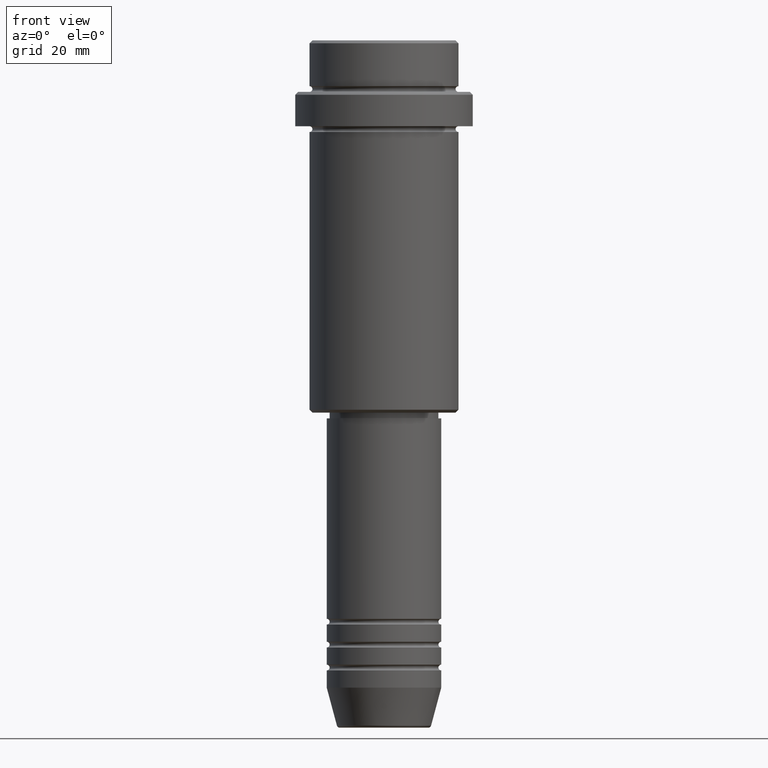
[diagram: clean part render]
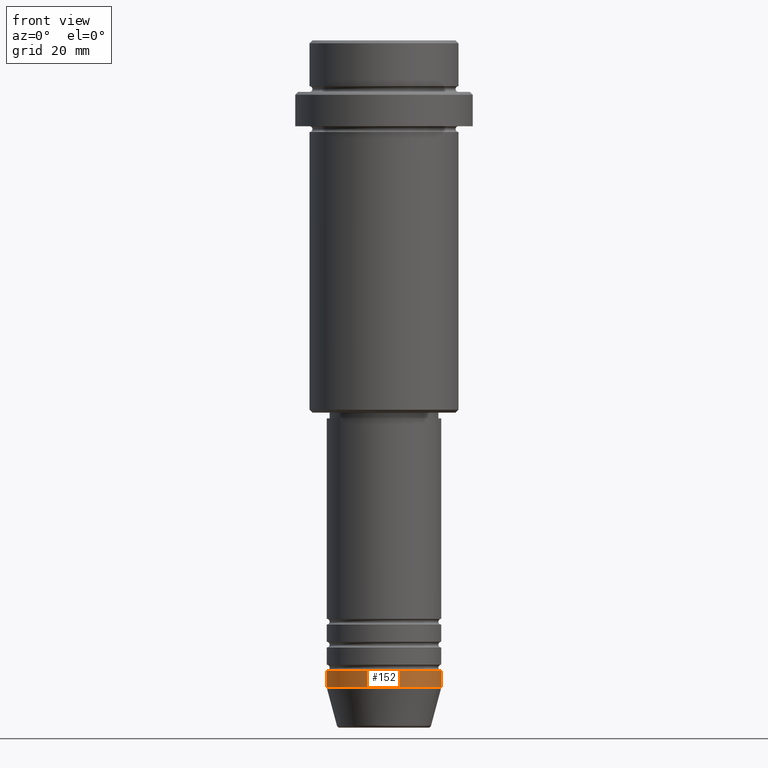
[diagram: same view with one face highlighted and labeled with its STEP entity id]
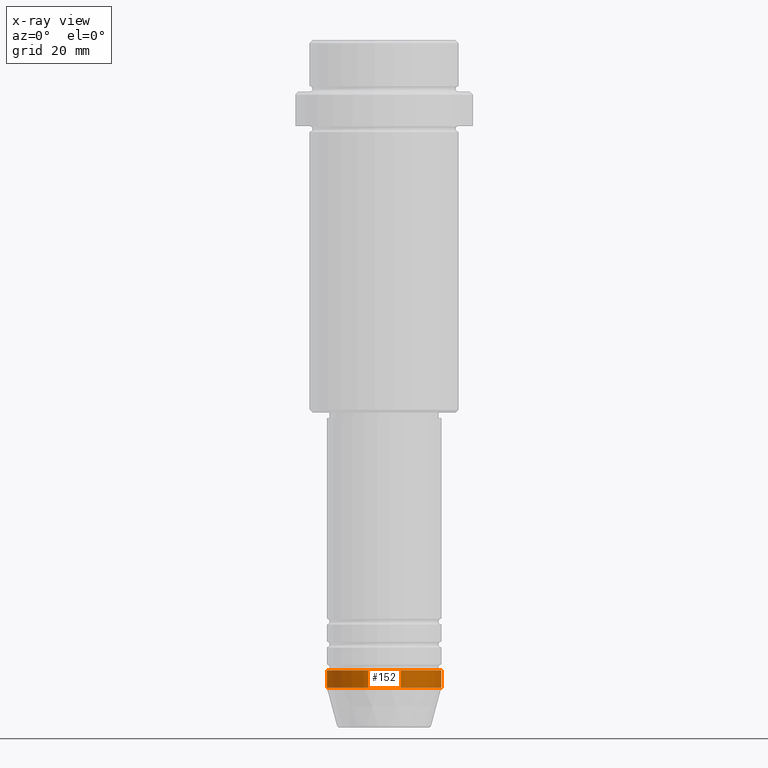
[diagram: x-ray of the same camera — body ghosted, the highlighted face saturated]
A machine part, front view. The second image highlights one B-rep face of the part: STEP entity #152.
The next image is the same camera in x-ray: the body ghosted, the highlighted face saturated — about 0% of this face is hidden behind the body in this view.
In plain terms, the highlighted cylindrical surface (partial cylindrical patch) has radius 10 mm, axis along (-0, -0, 1).
Its self-contained STEP definition (entity closure, byte-faithful):
#6 = EDGE_CURVE ( 'NONE', #214, #1297, #30, .T. ) ;
#13 = ORIENTED_EDGE ( 'NONE', *, *, #308, .F. ) ;
#28 = EDGE_CURVE ( 'NONE', #648, #832, #260, .T. ) ;
#30 = LINE ( 'NONE', #1356, #966 ) ;
#38 = DIRECTION ( 'NONE',  ( 1.000000000000000000, 0.000000000000000000, 0.000000000000000000 ) ) ;
#62 = AXIS2_PLACEMENT_3D ( 'NONE', #675, #380, #1353 ) ;
#74 = EDGE_CURVE ( 'NONE', #648, #214, #290, .T. ) ;
#80 = DIRECTION ( 'NONE',  ( -0.000000000000000000, -0.000000000000000000, 1.000000000000000000 ) ) ;
#152 = ADVANCED_FACE ( 'NONE', ( #525 ), #555, .T. ) ;
#213 = CARTESIAN_POINT ( 'NONE',  ( 0.000000000000000000, 0.000000000000000000, 0.000000000000000000 ) ) ;
#214 = VERTEX_POINT ( 'NONE', #973 ) ;
#249 = CARTESIAN_POINT ( 'NONE',  ( -10.00000000000000000, 1.224646799147353256E-15, -110.0000000000000000 ) ) ;
#260 = LINE ( 'NONE', #1056, #586 ) ;
#290 = CIRCLE ( 'NONE', #1085, 10.00000000000000000 ) ;
#308 = EDGE_CURVE ( 'NONE', #832, #1297, #676, .T. ) ;
#331 = DIRECTION ( 'NONE',  ( 1.000000000000000000, 0.000000000000000000, 0.000000000000000000 ) ) ;
#380 = DIRECTION ( 'NONE',  ( -0.000000000000000000, -0.000000000000000000, 1.000000000000000000 ) ) ;
#404 = DIRECTION ( 'NONE',  ( -0.000000000000000000, -0.000000000000000000, 1.000000000000000000 ) ) ;
#423 = CARTESIAN_POINT ( 'NONE',  ( -10.00000000000000000, 1.224646799147353256E-15, -113.0000000000000000 ) ) ;
#449 = ORIENTED_EDGE ( 'NONE', *, *, #28, .F. ) ;
#454 = CARTESIAN_POINT ( 'NONE',  ( 10.00000000000000000, 0.000000000000000000, -110.0000000000000000 ) ) ;
#525 = FACE_OUTER_BOUND ( 'NONE', #866, .T. ) ;
#530 = DIRECTION ( 'NONE',  ( -0.000000000000000000, -0.000000000000000000, 1.000000000000000000 ) ) ;
#537 = ORIENTED_EDGE ( 'NONE', *, *, #74, .T. ) ;
#555 = CYLINDRICAL_SURFACE ( 'NONE', #652, 10.00000000000000000 ) ;
#586 = VECTOR ( 'NONE', #80, 1000.000000000000000 ) ;
#623 = DIRECTION ( 'NONE',  ( -0.000000000000000000, -0.000000000000000000, 1.000000000000000000 ) ) ;
#648 = VERTEX_POINT ( 'NONE', #423 ) ;
#652 = AXIS2_PLACEMENT_3D ( 'NONE', #213, #530, #331 ) ;
#675 = CARTESIAN_POINT ( 'NONE',  ( 0.000000000000000000, 0.000000000000000000, -110.0000000000000000 ) ) ;
#676 = CIRCLE ( 'NONE', #62, 10.00000000000000000 ) ;
#832 = VERTEX_POINT ( 'NONE', #249 ) ;
#866 = EDGE_LOOP ( 'NONE', ( #449, #537, #941, #13 ) ) ;
#941 = ORIENTED_EDGE ( 'NONE', *, *, #6, .T. ) ;
#966 = VECTOR ( 'NONE', #623, 1000.000000000000000 ) ;
#973 = CARTESIAN_POINT ( 'NONE',  ( 10.00000000000000000, 0.000000000000000000, -113.0000000000000000 ) ) ;
#1056 = CARTESIAN_POINT ( 'NONE',  ( -10.00000000000000000, 1.224646799147353256E-15, 0.000000000000000000 ) ) ;
#1085 = AXIS2_PLACEMENT_3D ( 'NONE', #1242, #404, #38 ) ;
#1242 = CARTESIAN_POINT ( 'NONE',  ( 0.000000000000000000, 0.000000000000000000, -113.0000000000000000 ) ) ;
#1297 = VERTEX_POINT ( 'NONE', #454 ) ;
#1353 = DIRECTION ( 'NONE',  ( 1.000000000000000000, 0.000000000000000000, 0.000000000000000000 ) ) ;
#1356 = CARTESIAN_POINT ( 'NONE',  ( 10.00000000000000000, 0.000000000000000000, 0.000000000000000000 ) ) ;